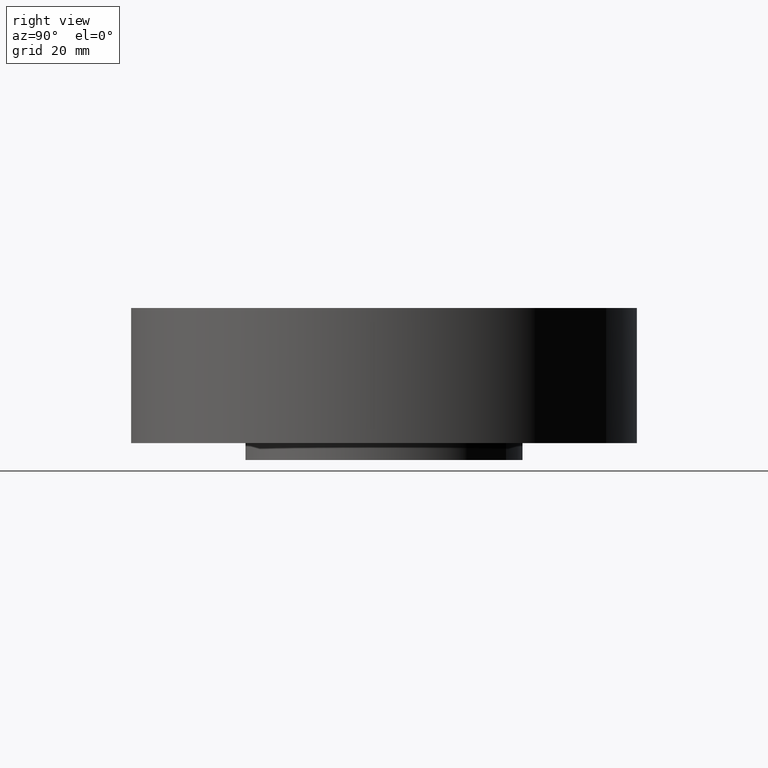
[diagram: clean part render]
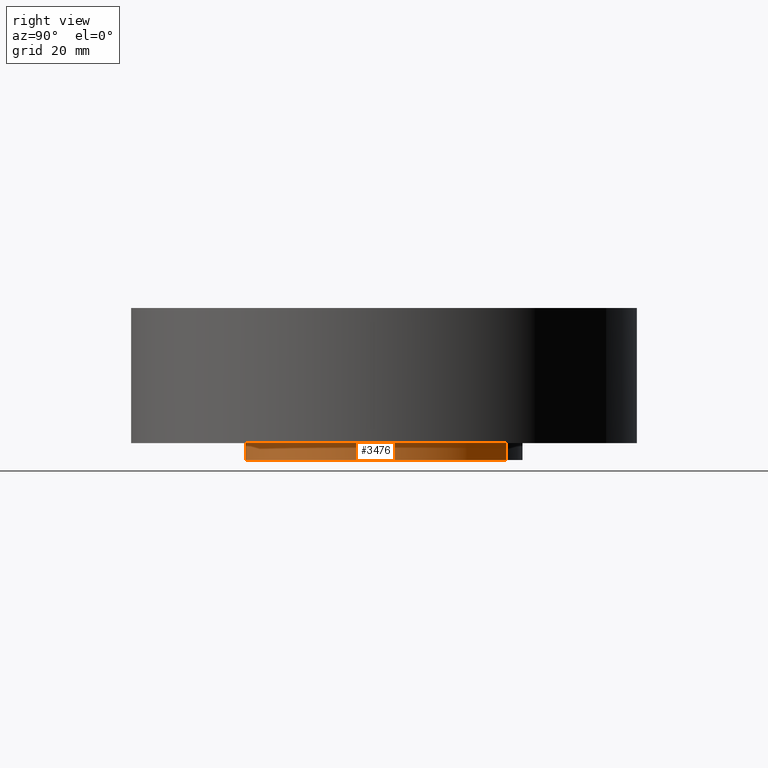
[diagram: same view with one face highlighted and labeled with its STEP entity id]
A machine part, right view. The second image highlights one B-rep face of the part: STEP entity #3476.
In plain terms, the highlighted cylindrical surface (partial cylindrical patch) has radius 52.324 mm, axis along (0, 0, -1).
Its self-contained STEP definition (entity closure, byte-faithful):
#3260=AXIS2_PLACEMENT_3D('Circle Axis2P3D',#3258,#3259,$) ;
#3449=AXIS2_PLACEMENT_3D('Cylinder Axis2P3D',#3446,#3447,#3448) ;
#3453=AXIS2_PLACEMENT_3D('Circle Axis2P3D',#3451,#3452,$) ;
#3258=CARTESIAN_POINT('Axis2P3D Location',(0.,0.,0.)) ;
#3262=CARTESIAN_POINT('Vertex',(0.987616609529,1.8078200775,-2.81139940724E-014)) ;
#3264=CARTESIAN_POINT('Vertex',(-0.987616609529,-1.8078200775,-2.81139940724E-014)) ;
#3446=CARTESIAN_POINT('Axis2P3D Location',(0.,0.,0.875000000003)) ;
#3451=CARTESIAN_POINT('Axis2P3D Location',(0.,0.,-0.250000000001)) ;
#3455=CARTESIAN_POINT('Vertex',(0.987616609529,1.8078200775,-0.250000000001)) ;
#3457=CARTESIAN_POINT('Vertex',(-0.987616609529,-1.8078200775,-0.250000000001)) ;
#3460=CARTESIAN_POINT('Line Origine',(0.987616609529,1.8078200775,-0.125000000001)) ;
#3465=CARTESIAN_POINT('Line Origine',(-0.987616609529,-1.8078200775,-0.125000000001)) ;
#3259=DIRECTION('Axis2P3D Direction',(0.,0.,-0.0393700787402)) ;
#3447=DIRECTION('Axis2P3D Direction',(0.,0.,-0.0393700787402)) ;
#3448=DIRECTION('Axis2P3D XDirection',(-0.0188750212049,-0.0345504945626,0.)) ;
#3452=DIRECTION('Axis2P3D Direction',(0.,0.,-0.0393700787402)) ;
#3461=DIRECTION('Vector Direction',(0.,0.,-0.0393700787402)) ;
#3466=DIRECTION('Vector Direction',(0.,0.,-0.0393700787402)) ;
#3462=VECTOR('Line Direction',#3461,0.0393700787402) ;
#3467=VECTOR('Line Direction',#3466,0.0393700787402) ;
#3471=ORIENTED_EDGE('',*,*,#3459,.F.) ;
#3472=ORIENTED_EDGE('',*,*,#3464,.T.) ;
#3473=ORIENTED_EDGE('',*,*,#3266,.T.) ;
#3474=ORIENTED_EDGE('',*,*,#3469,.F.) ;
#3476=ADVANCED_FACE('PartBody',(#3475),#3450,.T.) ;
#3261=CIRCLE('generated circle',#3260,2.06000000001) ;
#3454=CIRCLE('generated circle',#3453,2.06000000001) ;
#3450=CYLINDRICAL_SURFACE('generated cylinder',#3449,2.06000000001) ;
#3266=EDGE_CURVE('',#3263,#3265,#3261,.T.) ;
#3459=EDGE_CURVE('',#3456,#3458,#3454,.T.) ;
#3464=EDGE_CURVE('',#3456,#3263,#3463,.F.) ;
#3469=EDGE_CURVE('',#3458,#3265,#3468,.F.) ;
#3470=EDGE_LOOP('',(#3471,#3472,#3473,#3474)) ;
#3475=FACE_OUTER_BOUND('',#3470,.T.) ;
#3463=LINE('Line',#3460,#3462) ;
#3468=LINE('Line',#3465,#3467) ;
#3263=VERTEX_POINT('',#3262) ;
#3265=VERTEX_POINT('',#3264) ;
#3456=VERTEX_POINT('',#3455) ;
#3458=VERTEX_POINT('',#3457) ;